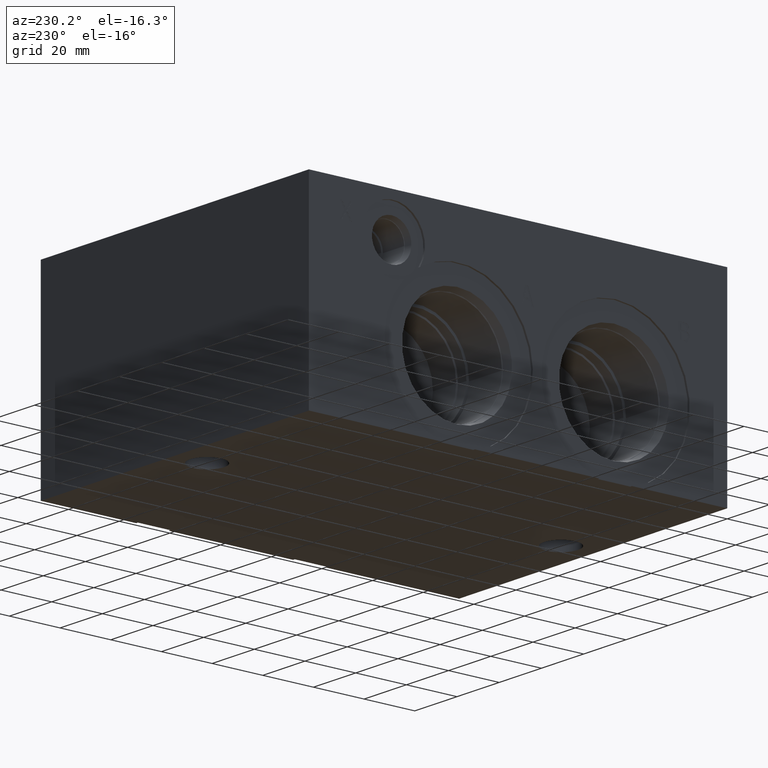
[diagram: clean part render]
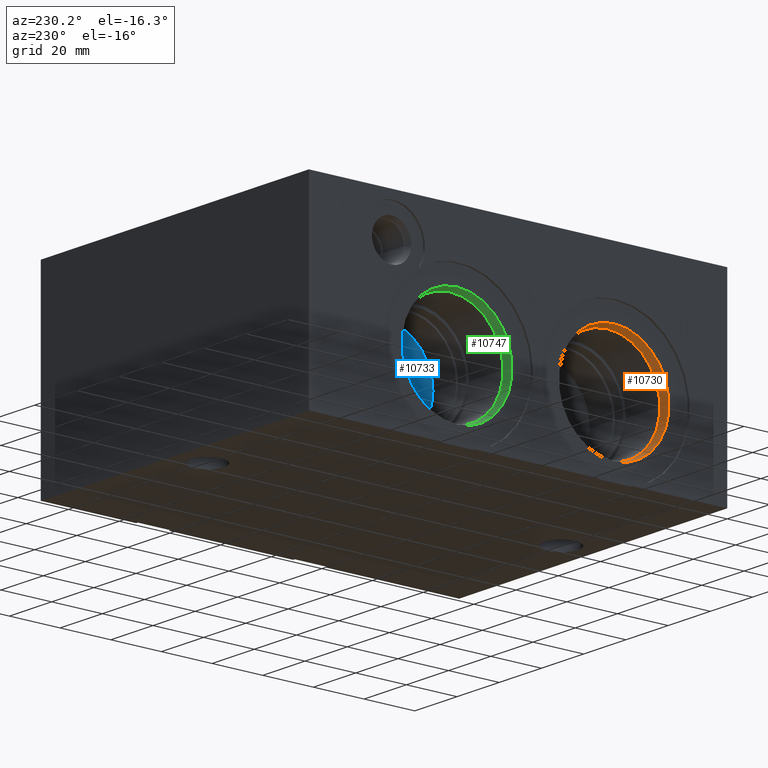
[diagram: same view with three faces highlighted in distinct colors, each labeled with its STEP entity id]
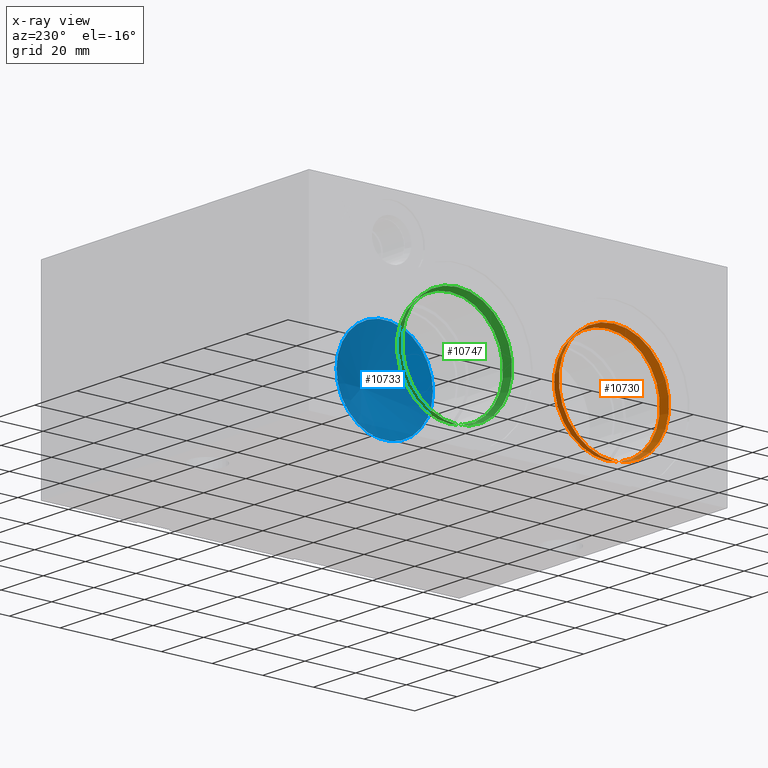
[diagram: x-ray of the same camera — body ghosted, the three highlighted faces saturated]
A machine part, auxiliary view with three faces highlighted in distinct colors.
The next image is the same camera in x-ray (body ghosted, the three faces saturated) — at least one of them is partly hidden behind the body in this view.
Their STEP definitions:

[orange] entity #10730 — the highlighted conical surface has half-angle 15 deg.
#82=CONICAL_SURFACE('',#11200,21.31695,0.261799389532319);
#171=CIRCLE('',#11197,21.7551);
#172=CIRCLE('',#11198,21.7551);
#173=CIRCLE('',#11201,20.8788);
#174=CIRCLE('',#11202,20.8788);
#1342=FACE_OUTER_BOUND('',#1944,.T.);
#1944=EDGE_LOOP('',(#9121,#9122,#9123,#9124,#9125,#9126));
#2968=LINE('',#18332,#3947);
#3947=VECTOR('',#13082,21.31695);
#4885=VERTEX_POINT('',#18325);
#4886=VERTEX_POINT('',#18326);
#4887=VERTEX_POINT('',#18331);
#4888=VERTEX_POINT('',#18333);
#6337=EDGE_CURVE('',#4885,#4886,#171,.T.);
#6338=EDGE_CURVE('',#4886,#4885,#172,.T.);
#6339=EDGE_CURVE('',#4886,#4887,#2968,.T.);
#6340=EDGE_CURVE('',#4887,#4888,#173,.T.);
#6341=EDGE_CURVE('',#4888,#4887,#174,.T.);
#9121=ORIENTED_EDGE('',*,*,#6337,.F.);
#9122=ORIENTED_EDGE('',*,*,#6338,.F.);
#9123=ORIENTED_EDGE('',*,*,#6339,.T.);
#9124=ORIENTED_EDGE('',*,*,#6340,.T.);
#9125=ORIENTED_EDGE('',*,*,#6341,.T.);
#9126=ORIENTED_EDGE('',*,*,#6339,.F.);
#10730=ADVANCED_FACE('',(#1342),#82,.F.);
#11197=AXIS2_PLACEMENT_3D('',#18327,#13074,#13075);
#11198=AXIS2_PLACEMENT_3D('',#18328,#13076,#13077);
#11200=AXIS2_PLACEMENT_3D('',#18330,#13080,#13081);
#11201=AXIS2_PLACEMENT_3D('',#18334,#13083,#13084);
#11202=AXIS2_PLACEMENT_3D('',#18335,#13085,#13086);
#13074=DIRECTION('center_axis',(1.,0.,0.));
#13075=DIRECTION('ref_axis',(0.,0.,-1.));
#13076=DIRECTION('center_axis',(1.,0.,0.));
#13077=DIRECTION('ref_axis',(0.,0.,-1.));
#13080=DIRECTION('center_axis',(-1.,0.,0.));
#13081=DIRECTION('ref_axis',(0.,0.,1.));
#13082=DIRECTION('',(0.965925825840491,-3.16961917193374E-17,0.258819046776634));
#13083=DIRECTION('center_axis',(1.,0.,0.));
#13084=DIRECTION('ref_axis',(0.,0.,-1.));
#13085=DIRECTION('center_axis',(1.,0.,0.));
#13086=DIRECTION('ref_axis',(0.,0.,-1.));
#18325=CARTESIAN_POINT('',(0.7874,44.0436,50.3301));
#18326=CARTESIAN_POINT('',(0.787400000000001,44.0436,6.81989999999999));
#18327=CARTESIAN_POINT('Origin',(0.7874,44.0436,28.575));
#18328=CARTESIAN_POINT('Origin',(0.7874,44.0436,28.575));
#18330=CARTESIAN_POINT('Origin',(2.42259805,44.0436,28.575));
#18331=CARTESIAN_POINT('',(4.0577961,44.0436,7.69619999999999));
#18332=CARTESIAN_POINT('',(2.42259805,44.0436,7.25804999999999));
#18333=CARTESIAN_POINT('',(4.0577961,44.0436,49.4538));
#18334=CARTESIAN_POINT('Origin',(4.0577961,44.0436,28.575));
#18335=CARTESIAN_POINT('Origin',(4.0577961,44.0436,28.575));

[blue] entity #10733 — the highlighted conical surface has half-angle 60 deg.
#84=CONICAL_SURFACE('',#11209,9.525,1.0471975511966);
#179=CIRCLE('',#11210,19.05);
#180=CIRCLE('',#11211,19.05);
#1345=FACE_OUTER_BOUND('',#1947,.T.);
#1947=EDGE_LOOP('',(#9139,#9140,#9141,#9142));
#2971=LINE('',#18353,#3950);
#3950=VECTOR('',#13105,9.525);
#4893=VERTEX_POINT('',#18349);
#4894=VERTEX_POINT('',#18350);
#4895=VERTEX_POINT('',#18352);
#6348=EDGE_CURVE('',#4893,#4894,#179,.T.);
#6349=EDGE_CURVE('',#4894,#4895,#2971,.T.);
#6350=EDGE_CURVE('',#4894,#4893,#180,.T.);
#9139=ORIENTED_EDGE('',*,*,#6348,.T.);
#9140=ORIENTED_EDGE('',*,*,#6349,.T.);
#9141=ORIENTED_EDGE('',*,*,#6349,.F.);
#9142=ORIENTED_EDGE('',*,*,#6350,.T.);
#10733=ADVANCED_FACE('',(#1345),#84,.F.);
#11209=AXIS2_PLACEMENT_3D('',#18348,#13101,#13102);
#11210=AXIS2_PLACEMENT_3D('',#18351,#13103,#13104);
#11211=AXIS2_PLACEMENT_3D('',#18354,#13106,#13107);
#13101=DIRECTION('center_axis',(-1.,0.,0.));
#13102=DIRECTION('ref_axis',(0.,1.,0.));
#13103=DIRECTION('center_axis',(-1.,0.,0.));
#13104=DIRECTION('ref_axis',(0.,1.,0.));
#13105=DIRECTION('',(0.5,0.866025403784439,-1.06057523872491E-16));
#13106=DIRECTION('center_axis',(-1.,0.,0.));
#13107=DIRECTION('ref_axis',(0.,1.,0.));
#18348=CARTESIAN_POINT('Origin',(40.5463813140312,105.9688,28.575));
#18349=CARTESIAN_POINT('',(35.04712,125.0188,28.575));
#18350=CARTESIAN_POINT('',(35.04712,86.9188,28.575));
#18351=CARTESIAN_POINT('Origin',(35.04712,105.9688,28.575));
#18352=CARTESIAN_POINT('',(46.0456426280624,105.9688,28.575));
#18353=CARTESIAN_POINT('',(40.5463813140312,96.4438,28.575));
#18354=CARTESIAN_POINT('Origin',(35.04712,105.9688,28.575));

[green] entity #10747 — the highlighted conical surface has half-angle 15 deg.
#88=CONICAL_SURFACE('',#11243,21.31695,0.261799389532319);
#199=CIRCLE('',#11244,21.7551);
#200=CIRCLE('',#11245,21.7551);
#201=CIRCLE('',#11246,20.8788);
#202=CIRCLE('',#11247,20.8788);
#1359=FACE_OUTER_BOUND('',#1963,.T.);
#1963=EDGE_LOOP('',(#9203,#9204,#9205,#9206,#9207,#9208));
#2983=LINE('',#18422,#3962);
#3962=VECTOR('',#13187,21.31695);
#4915=VERTEX_POINT('',#18417);
#4916=VERTEX_POINT('',#18418);
#4917=VERTEX_POINT('',#18421);
#4918=VERTEX_POINT('',#18423);
#6380=EDGE_CURVE('',#4915,#4916,#199,.T.);
#6381=EDGE_CURVE('',#4916,#4915,#200,.T.);
#6382=EDGE_CURVE('',#4916,#4917,#2983,.T.);
#6383=EDGE_CURVE('',#4917,#4918,#201,.T.);
#6384=EDGE_CURVE('',#4918,#4917,#202,.T.);
#9203=ORIENTED_EDGE('',*,*,#6380,.F.);
#9204=ORIENTED_EDGE('',*,*,#6381,.F.);
#9205=ORIENTED_EDGE('',*,*,#6382,.T.);
#9206=ORIENTED_EDGE('',*,*,#6383,.T.);
#9207=ORIENTED_EDGE('',*,*,#6384,.T.);
#9208=ORIENTED_EDGE('',*,*,#6382,.F.);
#10747=ADVANCED_FACE('',(#1359),#88,.F.);
#11243=AXIS2_PLACEMENT_3D('',#18416,#13181,#13182);
#11244=AXIS2_PLACEMENT_3D('',#18419,#13183,#13184);
#11245=AXIS2_PLACEMENT_3D('',#18420,#13185,#13186);
#11246=AXIS2_PLACEMENT_3D('',#18424,#13188,#13189);
#11247=AXIS2_PLACEMENT_3D('',#18425,#13190,#13191);
#13181=DIRECTION('center_axis',(-1.,0.,0.));
#13182=DIRECTION('ref_axis',(0.,0.,1.));
#13183=DIRECTION('center_axis',(1.,0.,0.));
#13184=DIRECTION('ref_axis',(0.,0.,-1.));
#13185=DIRECTION('center_axis',(1.,0.,0.));
#13186=DIRECTION('ref_axis',(0.,0.,-1.));
#13187=DIRECTION('',(0.965925825840491,-3.16961917193374E-17,0.258819046776634));
#13188=DIRECTION('center_axis',(1.,0.,0.));
#13189=DIRECTION('ref_axis',(0.,0.,-1.));
#13190=DIRECTION('center_axis',(1.,0.,0.));
#13191=DIRECTION('ref_axis',(0.,0.,-1.));
#18416=CARTESIAN_POINT('Origin',(2.42259805,105.9688,28.575));
#18417=CARTESIAN_POINT('',(0.7874,105.9688,50.3301));
#18418=CARTESIAN_POINT('',(0.787399999999999,105.9688,6.81989999999999));
#18419=CARTESIAN_POINT('Origin',(0.7874,105.9688,28.575));
#18420=CARTESIAN_POINT('Origin',(0.7874,105.9688,28.575));
#18421=CARTESIAN_POINT('',(4.0577961,105.9688,7.69619999999999));
#18422=CARTESIAN_POINT('',(2.42259805,105.9688,7.25804999999999));
#18423=CARTESIAN_POINT('',(4.0577961,105.9688,49.4538));
#18424=CARTESIAN_POINT('Origin',(4.0577961,105.9688,28.575));
#18425=CARTESIAN_POINT('Origin',(4.0577961,105.9688,28.575));